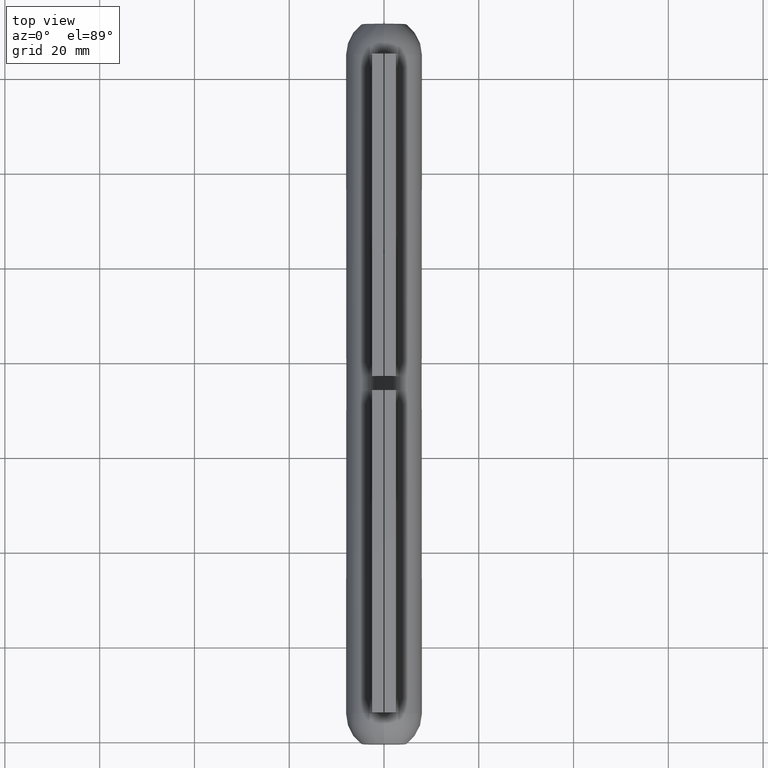
[diagram: clean part render]
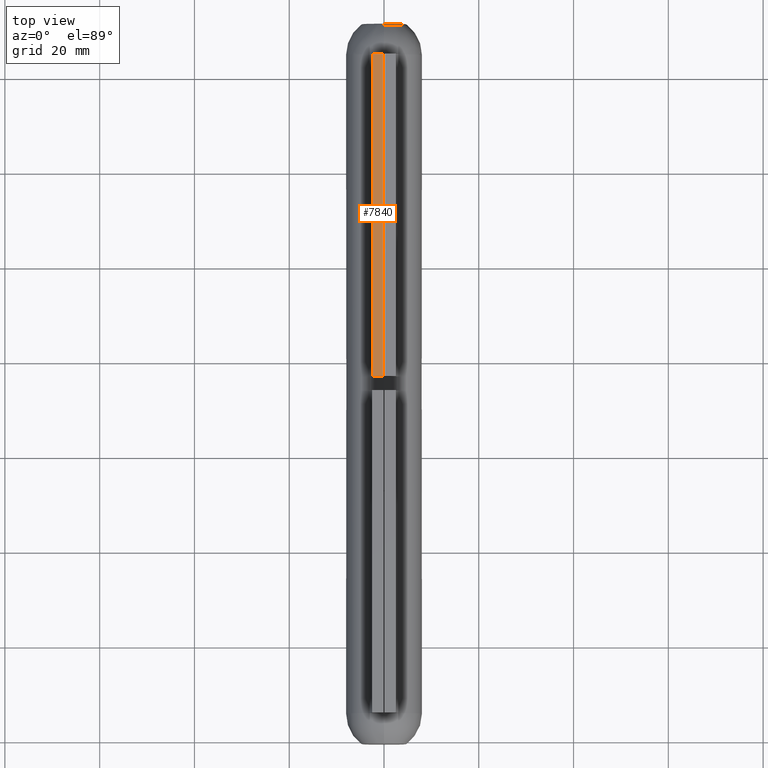
[diagram: same view with one face highlighted and labeled with its STEP entity id]
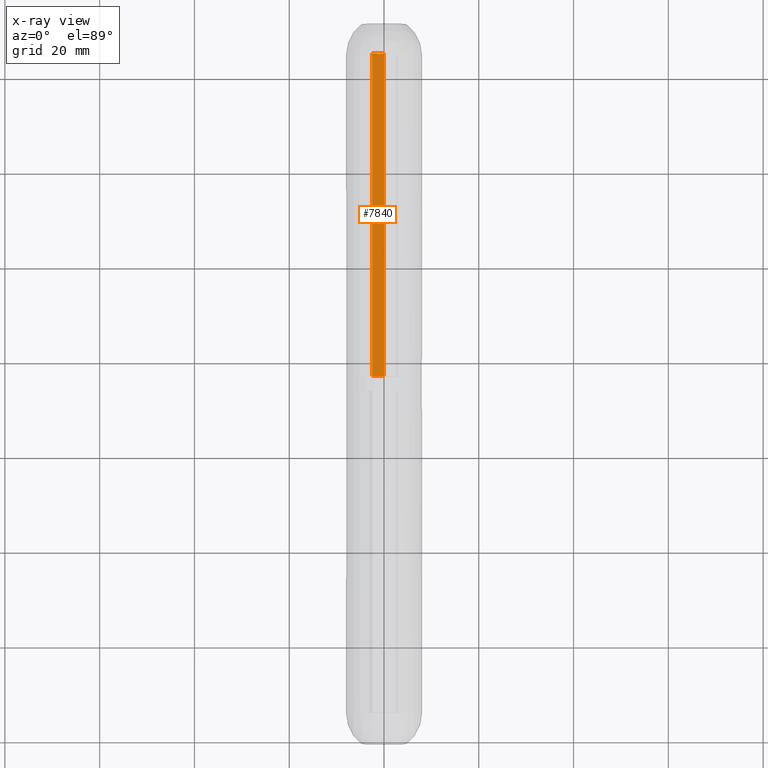
[diagram: x-ray of the same camera — body ghosted, the highlighted face saturated]
A machine part, top view. The second image highlights one B-rep face of the part: STEP entity #7840.
The next image is the same camera in x-ray: the body ghosted, the highlighted face saturated — about 0% of this face is hidden behind the body in this view.
In plain terms, the highlighted planar face has unit normal (0, 0, -1).
Its self-contained STEP definition (entity closure, byte-faithful):
#194 = CARTESIAN_POINT ( 'NONE',  ( -2.499999999999997780, 34.00000000000000000, 13.49999999999999822 ) ) ;
#340 = VERTEX_POINT ( 'NONE', #11688 ) ;
#752 = VECTOR ( 'NONE', #7636, 1000.000000000000000 ) ;
#853 = EDGE_CURVE ( 'NONE', #10374, #1433, #8728, .T. ) ;
#1433 = VERTEX_POINT ( 'NONE', #3783 ) ;
#2216 = EDGE_CURVE ( 'NONE', #10269, #340, #7917, .T. ) ;
#2353 = DIRECTION ( 'NONE',  ( -0.000000000000000000, -1.000000000000000000, -0.000000000000000000 ) ) ;
#2533 = FACE_OUTER_BOUND ( 'NONE', #3848, .T. ) ;
#3032 = EDGE_CURVE ( 'NONE', #10269, #10374, #10044, .T. ) ;
#3446 = VECTOR ( 'NONE', #7899, 1000.000000000000000 ) ;
#3783 = CARTESIAN_POINT ( 'NONE',  ( -0.09999999999999809042, -34.00000000000000000, 13.49999999999999822 ) ) ;
#3848 = EDGE_LOOP ( 'NONE', ( #9382, #10322, #10803, #10238 ) ) ;
#3973 = DIRECTION ( 'NONE',  ( 0.000000000000000000, 0.000000000000000000, -1.000000000000000000 ) ) ;
#4025 = VECTOR ( 'NONE', #2353, 1000.000000000000000 ) ;
#4188 = VECTOR ( 'NONE', #10864, 1000.000000000000000 ) ;
#6146 = PLANE ( 'NONE',  #9307 ) ;
#6833 = LINE ( 'NONE', #7969, #4188 ) ;
#7636 = DIRECTION ( 'NONE',  ( 1.000000000000000000, 0.000000000000000000, 0.000000000000000000 ) ) ;
#7840 = ADVANCED_FACE ( 'NONE', ( #2533 ), #6146, .F. ) ;
#7899 = DIRECTION ( 'NONE',  ( -0.000000000000000000, -1.000000000000000000, -0.000000000000000000 ) ) ;
#7917 = LINE ( 'NONE', #10328, #4025 ) ;
#7969 = CARTESIAN_POINT ( 'NONE',  ( -2.499999999999997780, -34.00000000000000000, 13.49999999999999822 ) ) ;
#8728 = LINE ( 'NONE', #9864, #3446 ) ;
#9153 = EDGE_CURVE ( 'NONE', #340, #1433, #6833, .T. ) ;
#9307 = AXIS2_PLACEMENT_3D ( 'NONE', #194, #3973, #11867 ) ;
#9382 = ORIENTED_EDGE ( 'NONE', *, *, #9153, .T. ) ;
#9650 = CARTESIAN_POINT ( 'NONE',  ( -2.499999999999997780, 34.00000000000000000, 13.49999999999999822 ) ) ;
#9864 = CARTESIAN_POINT ( 'NONE',  ( -0.09999999999999809042, 34.00000000000000000, 13.49999999999999822 ) ) ;
#10044 = LINE ( 'NONE', #9650, #752 ) ;
#10238 = ORIENTED_EDGE ( 'NONE', *, *, #2216, .T. ) ;
#10269 = VERTEX_POINT ( 'NONE', #12044 ) ;
#10322 = ORIENTED_EDGE ( 'NONE', *, *, #853, .F. ) ;
#10328 = CARTESIAN_POINT ( 'NONE',  ( -2.499999999999997780, 34.00000000000000000, 13.49999999999999822 ) ) ;
#10374 = VERTEX_POINT ( 'NONE', #12623 ) ;
#10803 = ORIENTED_EDGE ( 'NONE', *, *, #3032, .F. ) ;
#10864 = DIRECTION ( 'NONE',  ( 1.000000000000000000, 0.000000000000000000, 0.000000000000000000 ) ) ;
#11688 = CARTESIAN_POINT ( 'NONE',  ( -2.499999999999997780, -34.00000000000000000, 13.49999999999999822 ) ) ;
#11867 = DIRECTION ( 'NONE',  ( -1.000000000000000000, 0.000000000000000000, -0.000000000000000000 ) ) ;
#12044 = CARTESIAN_POINT ( 'NONE',  ( -2.499999999999997780, 34.00000000000000000, 13.49999999999999822 ) ) ;
#12623 = CARTESIAN_POINT ( 'NONE',  ( -0.09999999999999809042, 34.00000000000000000, 13.49999999999999822 ) ) ;